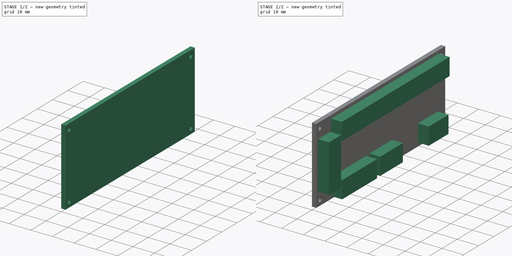
[diagram: build sequence overview — one tinted view per stage of 2, left to right]
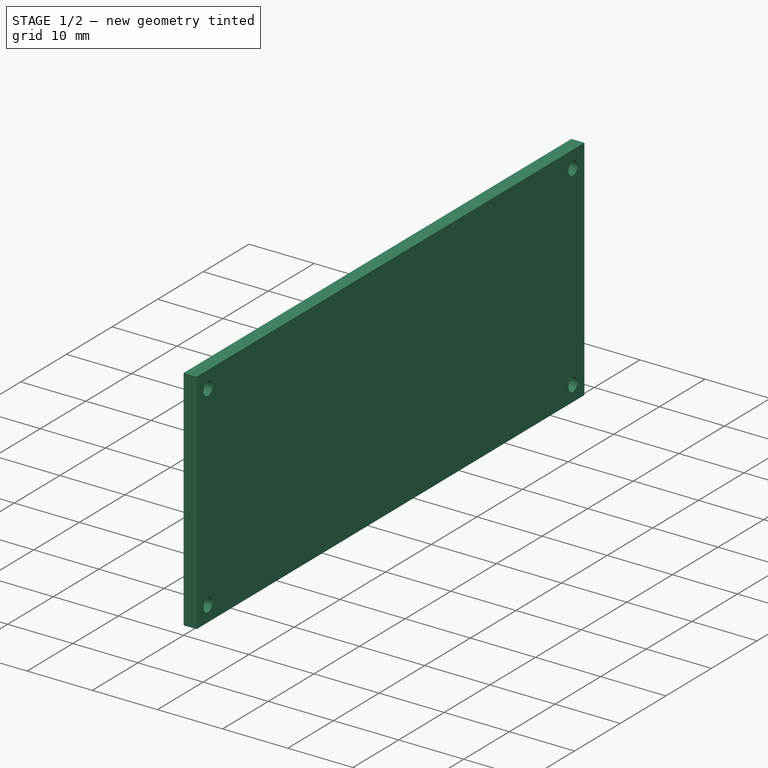
[diagram: stage 1 of 2 — iso view after this stage's code; geometry added in this stage tinted green]
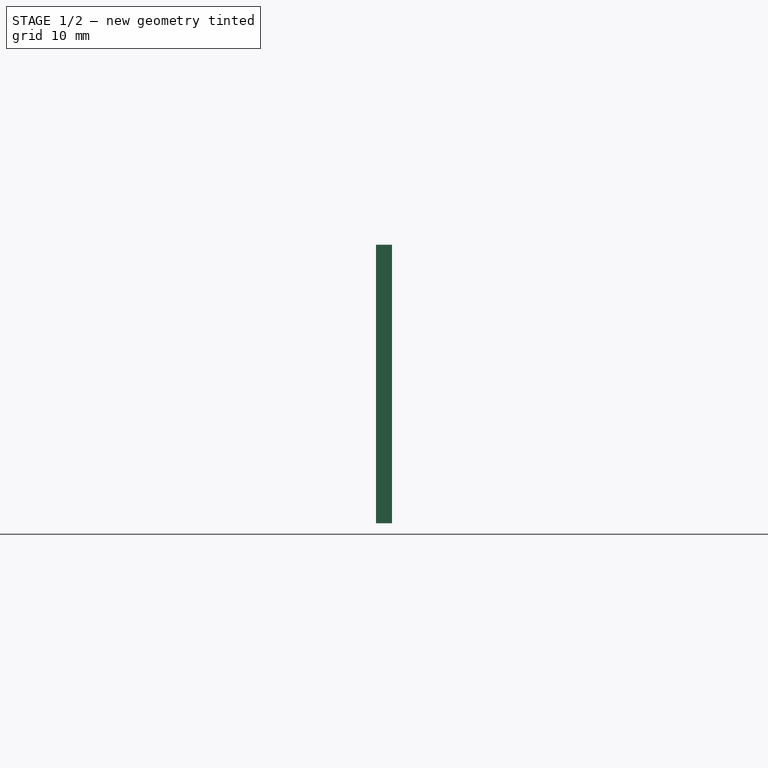
[diagram: stage 1 of 2 — front view after this stage's code; geometry added in this stage tinted green]
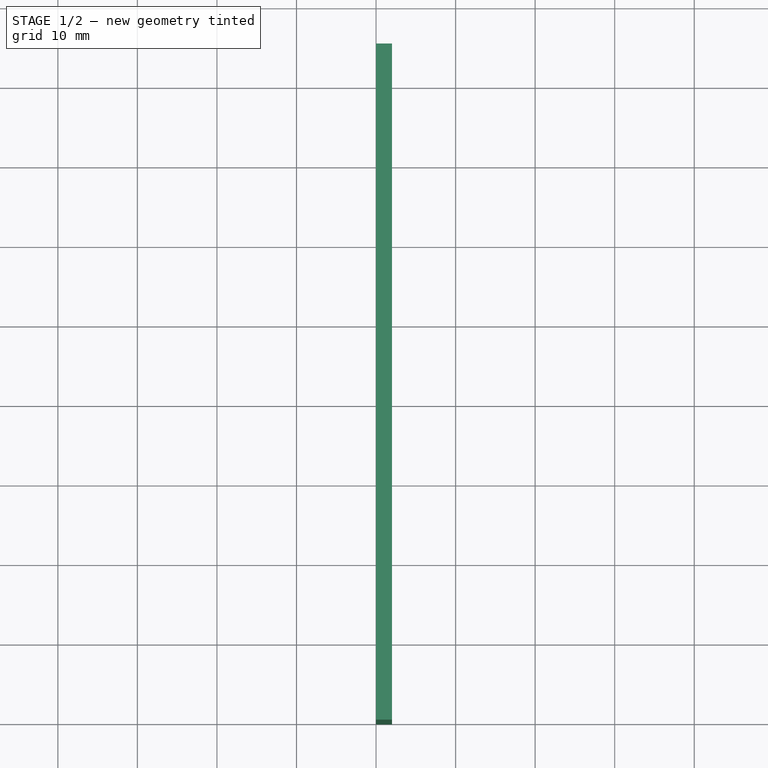
[diagram: stage 1 of 2 — top view after this stage's code; geometry added in this stage tinted green]
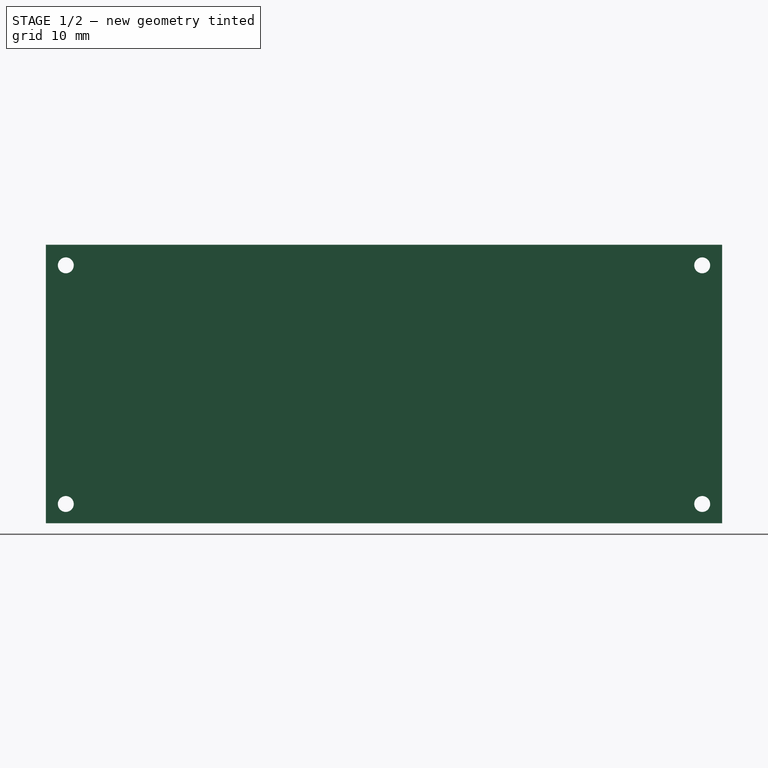
[diagram: stage 1 of 2 — right view after this stage's code; geometry added in this stage tinted green]
FCSTD DOCUMENT  (FreeCAD 0.19R24276 (Git))
Label: 1200_PCB_Joystick01
License: All rights reserved
LicenseURL: http://en.wikipedia.org/wiki/All_rights_reserved
objects: Sketcher::SketchObject×2, PartDesign::Pad×2, PartDesign::Body×1
note: 7 computed .brp shape members not serialized (recipe doc carries the construction recipe); baked Part::Feature solids carry a one-line shape summary decoded from their .brp

FEATURE [Sketcher::SketchObject] Sketch
  FullyConstrained = false
  MapMode = 5
  Placement = pos=(0,0,0) rot=(0.57735,0.57735,0.57735;2.0944rad)
  sketch-geometry (16):
    g0: LineSegment StartX=0 StartY=0 StartZ=0 EndX=85 EndY=0 EndZ=0
    g1: LineSegment StartX=85 StartY=0 StartZ=0 EndX=85 EndY=35 EndZ=0
    g2: LineSegment StartX=85 StartY=35 StartZ=0 EndX=0 EndY=35 EndZ=0
    g3: LineSegment StartX=0 StartY=35 StartZ=0 EndX=0 EndY=0 EndZ=0
    g4: LineSegment StartX=0 StartY=35 StartZ=0 EndX=42.5 EndY=17.5 EndZ=0
    g5: LineSegment StartX=42.5 StartY=17.5 StartZ=0 EndX=85 EndY=0 EndZ=0
    g6: LineSegment StartX=42.5 StartY=17.5 StartZ=0 EndX=2.5 EndY=17.5 EndZ=0
    g7: LineSegment StartX=42.5 StartY=17.5 StartZ=0 EndX=82.5 EndY=17.5 EndZ=0
    g8: LineSegment StartX=2.5 StartY=32.4163 StartZ=0 EndX=82.5 EndY=32.4163 EndZ=0
    g9: LineSegment StartX=82.5 StartY=32.4163 StartZ=0 EndX=82.5 EndY=2.41628 EndZ=0
    g10: LineSegment StartX=82.5 StartY=2.41628 StartZ=0 EndX=2.5 EndY=2.41628 EndZ=0
    g11: LineSegment StartX=2.5 StartY=2.41628 StartZ=0 EndX=2.5 EndY=32.4163 EndZ=0
    g12: Circle CenterX=2.5 CenterY=32.4163 CenterZ=0 NormalX=0 NormalY=0 NormalZ=1 AngleXU=0 Radius=1
    g13: Circle CenterX=82.5 CenterY=32.4163 CenterZ=0 NormalX=0 NormalY=0 NormalZ=1 AngleXU=0 Radius=1
    g14: Circle CenterX=82.5 CenterY=2.41628 CenterZ=0 NormalX=0 NormalY=0 NormalZ=1 AngleXU=0 Radius=1
    g15: Circle CenterX=2.5 CenterY=2.41628 CenterZ=0 NormalX=0 NormalY=0 NormalZ=1 AngleXU=0 Radius=1
  constraints (39):
    c: Coincident(g0,g1)
    c: Coincident(g1,g2)
    c: Coincident(g2,g3)
    c: Coincident(g3,g0)
    c: Horizontal(g0)
    c: Horizontal(g2)
    c: Vertical(g1)
    c: Vertical(g3)
    c: Coincident(g0,g-1)
    c: DistanceY(g3,g3) = 35
    c: DistanceX(g0,g0) = 85
    c: Coincident(g4,g2)
    c: Coincident(g5,g4)
    c: Coincident(g5,g0)
    c: Equal(g5,g4)
    c: Coincident(g6,g4)
    c: Horizontal(g6)
    c: Coincident(g7,g4)
    c: Horizontal(g7)
    c: Equal(g6,g7)
    c: Coincident(g8,g9)
    c: Coincident(g9,g10)
    c: Coincident(g10,g11)
    c: Coincident(g11,g8)
    c: Horizontal(g8)
    c: Horizontal(g10)
    c: Vertical(g9)
    c: Vertical(g11)
    c: Parallel(g5,g4)
    c: PointOnObject(g6,g11)
    c: PointOnObject(g7,g9)
    c: DistanceY(g11,g11) = 30
    c: DistanceX(g10,g10) = 80
    c: Coincident(g12,g8)
    c: Coincident(g13,g8)
    c: Coincident(g14,g9)
    c: Coincident(g15,g10)
    c: Diameter(g12) = 2
    c: Equal(g12,g13)
FEATURE [PartDesign::Pad] Pad
  Direction = (1,1,1)
  Length = 2
  Length2 = 100
  Placement = pos=(0,0,0) rot=(0.57735,0.57735,0.57735;2.0944rad)
  Profile = -> Sketch
  Type = 0
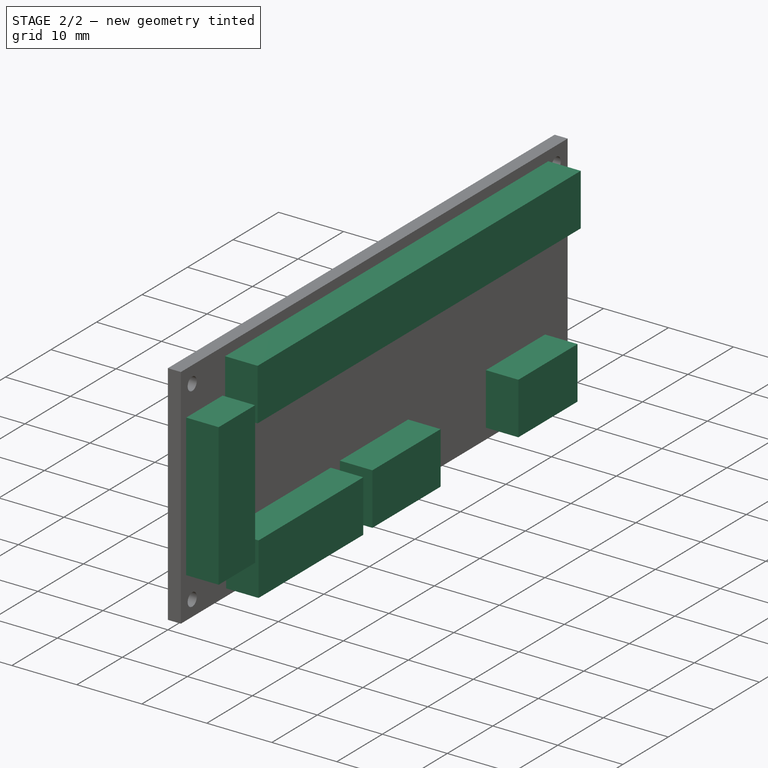
[diagram: stage 2 of 2 — iso view after this stage's code; geometry added in this stage tinted green]
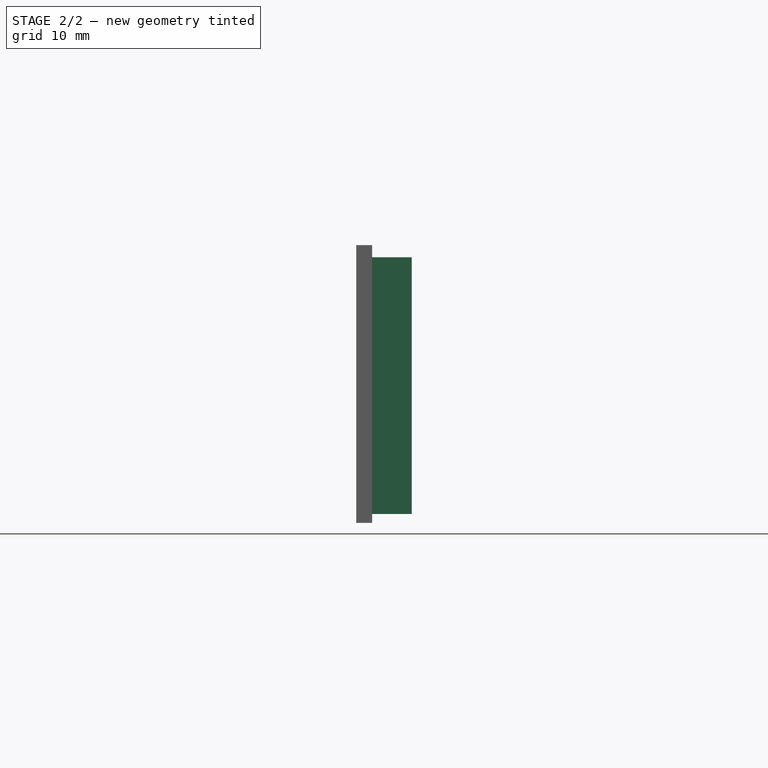
[diagram: stage 2 of 2 — front view after this stage's code; geometry added in this stage tinted green]
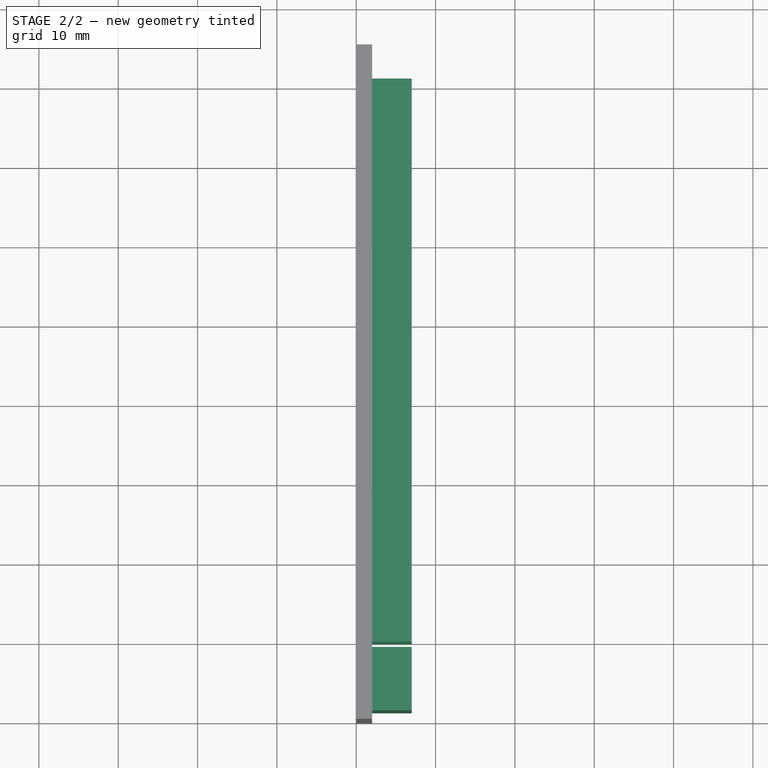
[diagram: stage 2 of 2 — top view after this stage's code; geometry added in this stage tinted green]
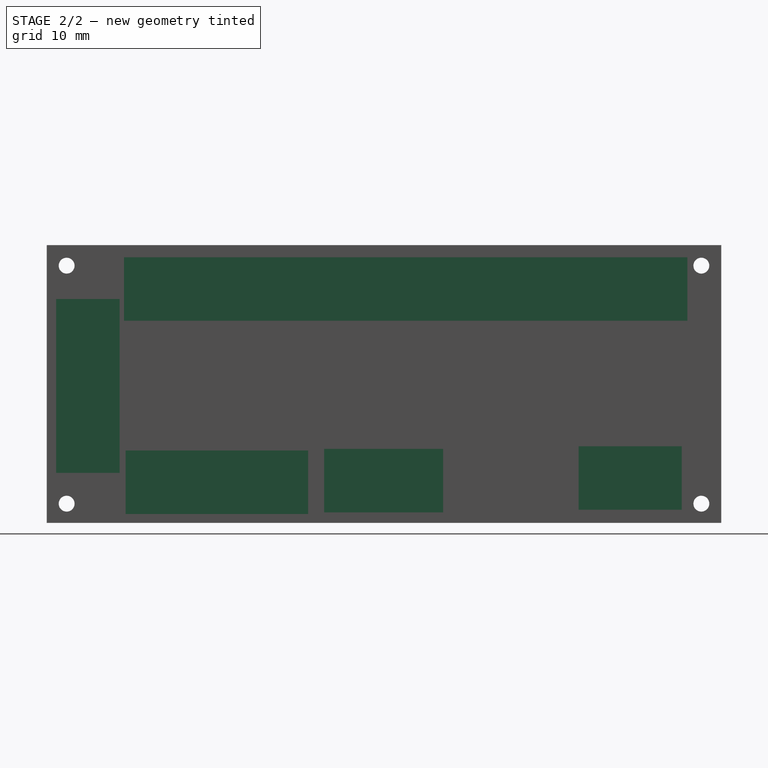
[diagram: stage 2 of 2 — right view after this stage's code; geometry added in this stage tinted green]
FEATURE [Sketcher::SketchObject] Sketch001
  FullyConstrained = false
  MapMode = 5
  Placement = pos=(2,0,1e-16) rot=(0.57735,0.57735,0.57735;2.0944rad)
  Support = -> [Pad]
  sketch-geometry (20):
    g0: LineSegment StartX=67.0317 StartY=9.6524 StartZ=0 EndX=80.0317 EndY=9.6524 EndZ=0
    g1: LineSegment StartX=80.0317 StartY=9.6524 StartZ=0 EndX=80.0317 EndY=1.6524 EndZ=0
    g2: LineSegment StartX=80.0317 StartY=1.6524 StartZ=0 EndX=67.0317 EndY=1.6524 EndZ=0
    g3: LineSegment StartX=67.0317 StartY=1.6524 StartZ=0 EndX=67.0317 EndY=9.6524 EndZ=0
    g4: LineSegment StartX=1.1736 StartY=28.2154 StartZ=0 EndX=9.1736 EndY=28.2154 EndZ=0
    g5: LineSegment StartX=9.1736 StartY=28.2154 StartZ=0 EndX=9.1736 EndY=6.30333 EndZ=0
    g6: LineSegment StartX=9.1736 StartY=6.30333 StartZ=0 EndX=1.1736 EndY=6.30333 EndZ=0
    g7: LineSegment StartX=1.1736 StartY=6.30333 StartZ=0 EndX=1.1736 EndY=28.2154 EndZ=0
    g8: LineSegment StartX=9.73456 StartY=33.4754 StartZ=0 EndX=80.7346 EndY=33.4754 EndZ=0
    g9: LineSegment StartX=80.7346 StartY=33.4754 StartZ=0 EndX=80.7346 EndY=25.4754 EndZ=0
    g10: LineSegment StartX=80.7346 StartY=25.4754 StartZ=0 EndX=9.73456 EndY=25.4754 EndZ=0
    g11: LineSegment StartX=9.73456 StartY=25.4754 StartZ=0 EndX=9.73456 EndY=33.4754 EndZ=0
    g12: LineSegment StartX=34.9468 StartY=9.31728 StartZ=0 EndX=49.9468 EndY=9.31728 EndZ=0
    g13: LineSegment StartX=49.9468 StartY=9.31728 StartZ=0 EndX=49.9468 EndY=1.31728 EndZ=0
    g14: LineSegment StartX=49.9468 StartY=1.31728 StartZ=0 EndX=34.9468 EndY=1.31728 EndZ=0
    g15: LineSegment StartX=34.9468 StartY=1.31728 StartZ=0 EndX=34.9468 EndY=9.31728 EndZ=0
    g16: LineSegment StartX=9.94104 StartY=9.11481 StartZ=0 EndX=32.941 EndY=9.11481 EndZ=0
    g17: LineSegment StartX=32.941 StartY=9.11481 StartZ=0 EndX=32.941 EndY=1.11481 EndZ=0
    g18: LineSegment StartX=32.941 StartY=1.11481 StartZ=0 EndX=9.94104 EndY=1.11481 EndZ=0
    g19: LineSegment StartX=9.94104 StartY=1.11481 StartZ=0 EndX=9.94104 EndY=9.11481 EndZ=0
  constraints (50):
    c: Coincident(g0,g1)
    c: Coincident(g1,g2)
    c: Coincident(g2,g3)
    c: Coincident(g3,g0)
    c: Horizontal(g0)
    c: Horizontal(g2)
    c: Vertical(g1)
    c: Vertical(g3)
    c: Coincident(g4,g5)
    c: Coincident(g5,g6)
    c: Coincident(g6,g7)
    c: Coincident(g7,g4)
    c: Horizontal(g4)
    c: Horizontal(g6)
    c: Vertical(g5)
    c: Vertical(g7)
    c: Coincident(g8,g9)
    c: Coincident(g9,g10)
    c: Coincident(g10,g11)
    c: Coincident(g11,g8)
    c: Horizontal(g8)
    c: Horizontal(g10)
    c: Vertical(g9)
    c: Vertical(g11)
    c: Coincident(g12,g13)
    c: Coincident(g13,g14)
    c: Coincident(g14,g15)
    c: Coincident(g15,g12)
    c: Horizontal(g12)
    c: Horizontal(g14)
    c: Vertical(g13)
    c: Vertical(g15)
    c: Equal(g6,g9)
    c: Equal(g9,g13)
    c: Equal(g13,g1)
    c: DistanceY(g11,g11) = 8
    c: DistanceX(g14,g14) = 15
    c: DistanceX(g2,g2) = 13
    c: DistanceX(g8,g8) = 71
    c: Coincident(g16,g17)
    c: Coincident(g17,g18)
    c: Coincident(g18,g19)
    c: Coincident(g19,g16)
    c: Horizontal(g16)
    c: Horizontal(g18)
    c: Vertical(g17)
    c: Vertical(g19)
    c: Equal(g17,g6)
    c: DistanceX(g6,g6) = 8
    c: DistanceX(g18,g18) = 23
FEATURE [PartDesign::Pad] Pad001
  BaseFeature = -> Pad
  Direction = (1,1,1)
  Length = 5
  Length2 = 100
  Placement = pos=(0,0,0) rot=(0.57735,0.57735,0.57735;2.0944rad)
  Profile = -> Sketch001
  Type = 0
FEATURE [PartDesign::Body] Body
  Group = -> [Sketch,Pad,Sketch001,Pad001]
  Origin = -> Origin
  Tip = -> Pad001
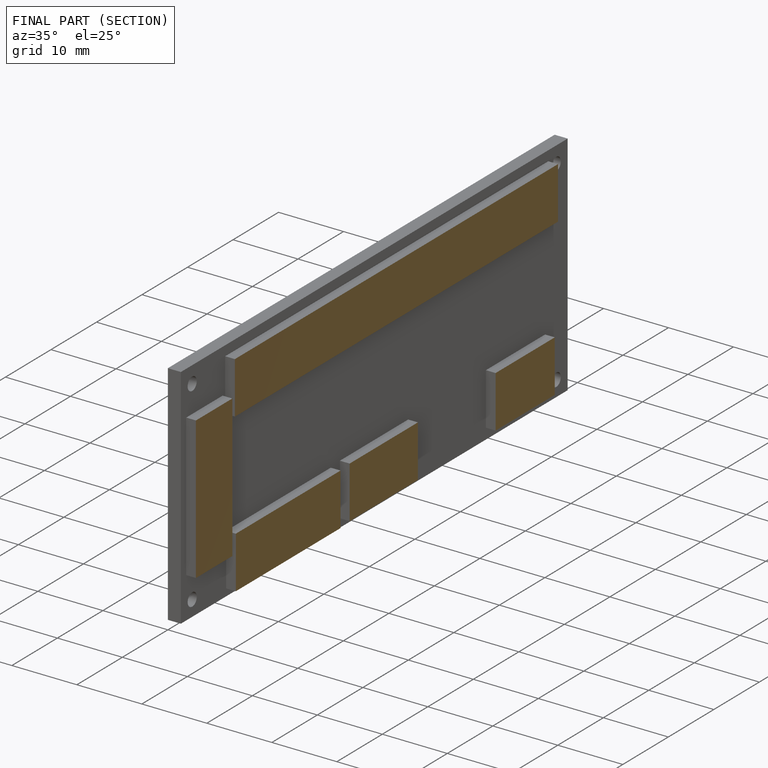
[diagram: finished part — half-section view (interior)]
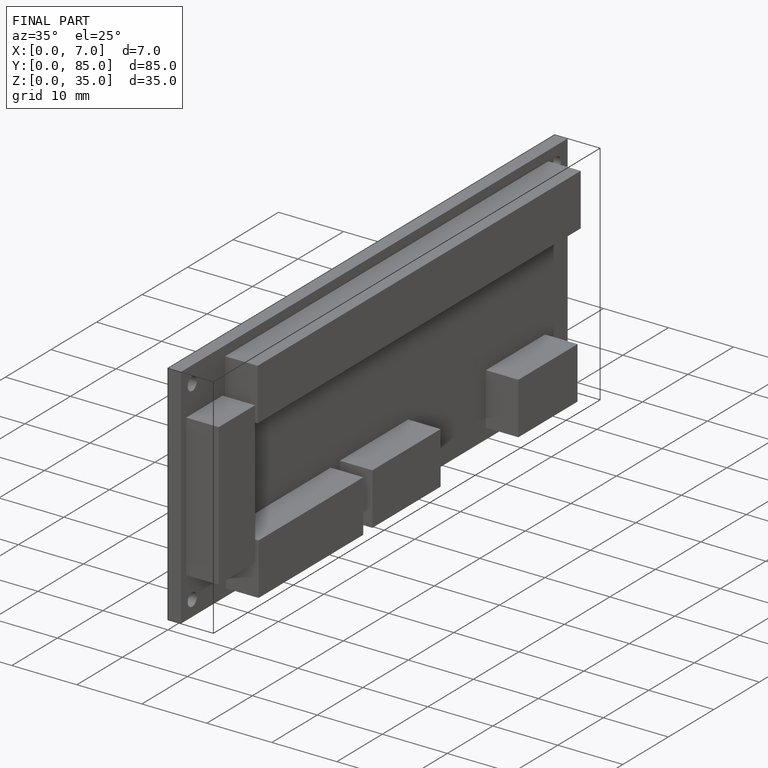
[diagram: finished part — iso view with bounding-box wireframe]
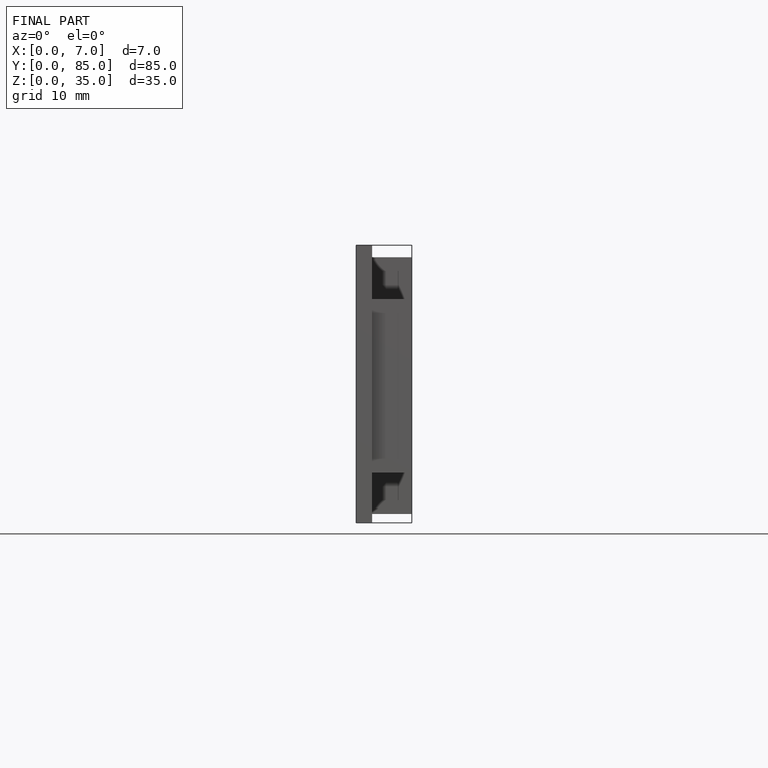
[diagram: finished part — front view with bounding-box wireframe]
